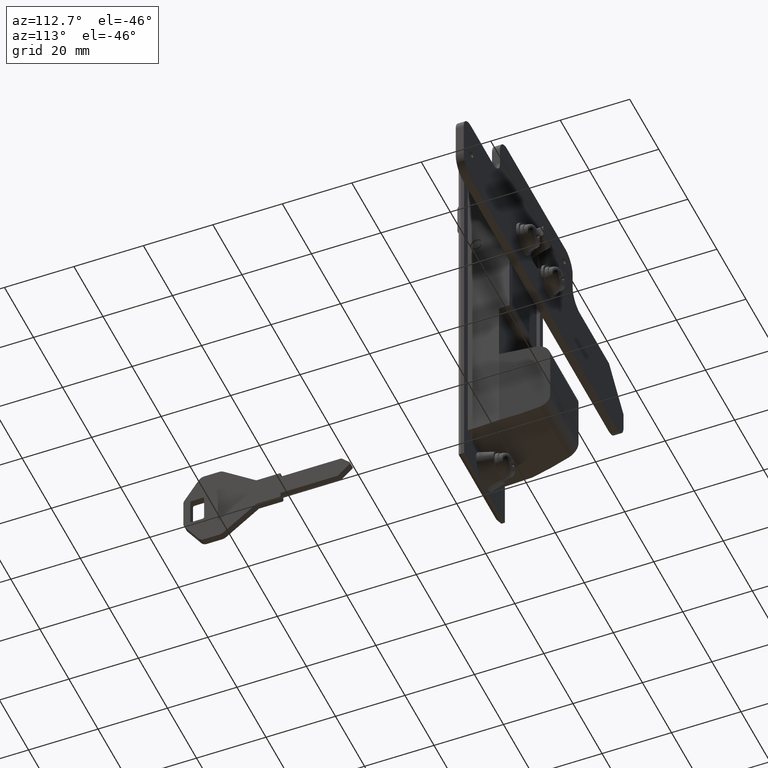
[diagram: clean part render]
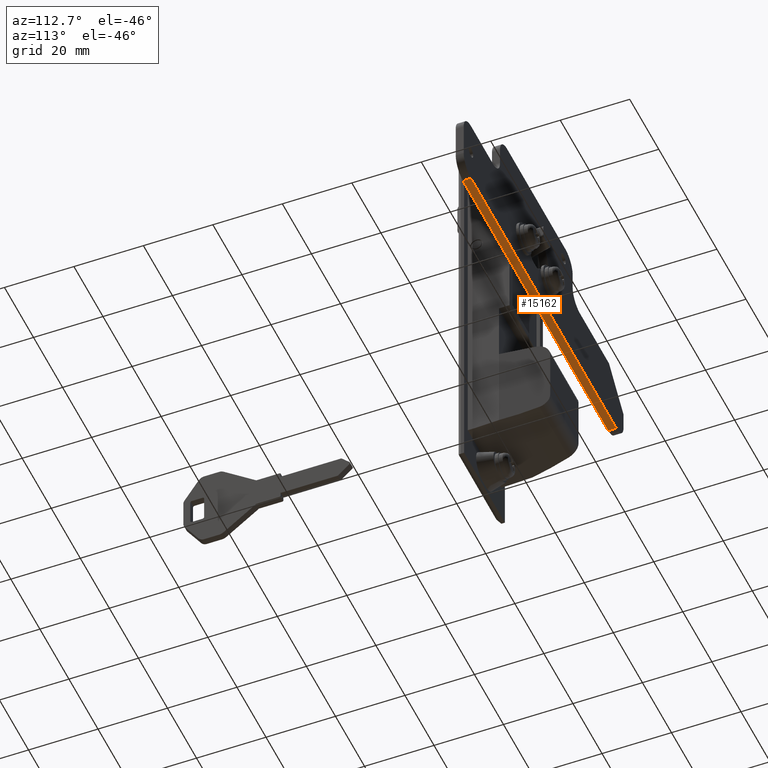
[diagram: same view with one face highlighted and labeled with its STEP entity id]
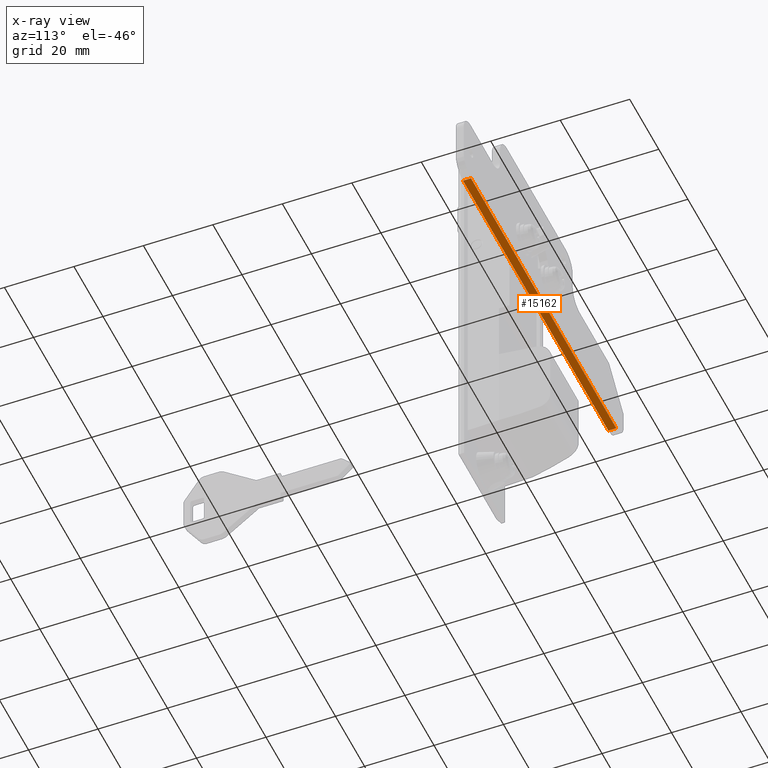
[diagram: x-ray of the same camera — body ghosted, the highlighted face saturated]
A machine part, auxiliary view. The second image highlights one B-rep face of the part: STEP entity #15162.
The next image is the same camera in x-ray: the body ghosted, the highlighted face saturated — about 0% of this face is hidden behind the body in this view.
In plain terms, the highlighted face is a freeform B-spline surface patch.
Its self-contained STEP definition (entity closure, byte-faithful):
#15096=CARTESIAN_POINT('',(0.0,56.500000000000000,-10.0));
#15097=VERTEX_POINT('',#15096);
#15112=CARTESIAN_POINT('',(2.300000000000080,56.500000000000000,-10.0));
#15113=VERTEX_POINT('',#15112);
#15127=CARTESIAN_POINT('',(2.300000000000080,56.500000000000000,-10.0));
#15128=CARTESIAN_POINT('',(0.0,56.500000000000000,-10.0));
#15129=QUASI_UNIFORM_CURVE('',1,(#15127,#15128),.UNSPECIFIED.,.F.,.U.);
#15130=EDGE_CURVE('',#15113,#15097,#15129,.T.);
#15135=CARTESIAN_POINT('',(-0.114884987324942,61.494999806180587,-10.0));
#15136=CARTESIAN_POINT('',(-0.114884987324942,-48.495002488389623,-10.0));
#15137=CARTESIAN_POINT('',(2.414884884507010,61.494999806180587,-10.0));
#15138=CARTESIAN_POINT('',(2.414884884507010,-48.495002488389623,-10.0));
#15139=B_SPLINE_SURFACE_WITH_KNOTS('',1,1,((#15135,#15137),(#15136,#15138)),.UNSPECIFIED.,.F.,.F.,.U.,(2,2),(2,2),(0.0,109.990002294570200),(0.0,2.529769871831952),.UNSPECIFIED.);
#15140=CARTESIAN_POINT('',(0.0,-43.500000000000000,-10.0));
#15141=VERTEX_POINT('',#15140);
#15142=CARTESIAN_POINT('',(0.0,-43.500000000000000,-10.0));
#15143=CARTESIAN_POINT('',(0.0,56.500000000000000,-10.0));
#15144=QUASI_UNIFORM_CURVE('',1,(#15142,#15143),.UNSPECIFIED.,.F.,.U.);
#15145=EDGE_CURVE('',#15141,#15097,#15144,.T.);
#15146=ORIENTED_EDGE('',*,*,#15145,.T.);
#15147=ORIENTED_EDGE('',*,*,#15130,.F.);
#15148=CARTESIAN_POINT('',(2.300000000000080,-43.500000000000000,-10.0));
#15149=VERTEX_POINT('',#15148);
#15150=CARTESIAN_POINT('',(2.300000000000080,-43.500000000000000,-10.0));
#15151=CARTESIAN_POINT('',(2.300000000000080,56.500000000000000,-10.0));
#15152=QUASI_UNIFORM_CURVE('',1,(#15150,#15151),.UNSPECIFIED.,.F.,.U.);
#15153=EDGE_CURVE('',#15149,#15113,#15152,.T.);
#15154=ORIENTED_EDGE('',*,*,#15153,.F.);
#15155=CARTESIAN_POINT('',(2.300000000000080,-43.500000000000000,-10.0));
#15156=CARTESIAN_POINT('',(0.0,-43.500000000000000,-10.0));
#15157=QUASI_UNIFORM_CURVE('',1,(#15155,#15156),.UNSPECIFIED.,.F.,.U.);
#15158=EDGE_CURVE('',#15149,#15141,#15157,.T.);
#15159=ORIENTED_EDGE('',*,*,#15158,.T.);
#15160=EDGE_LOOP('',(#15146,#15147,#15154,#15159));
#15161=FACE_OUTER_BOUND('',#15160,.T.);
#15162=ADVANCED_FACE('',(#15161),#15139,.F.);